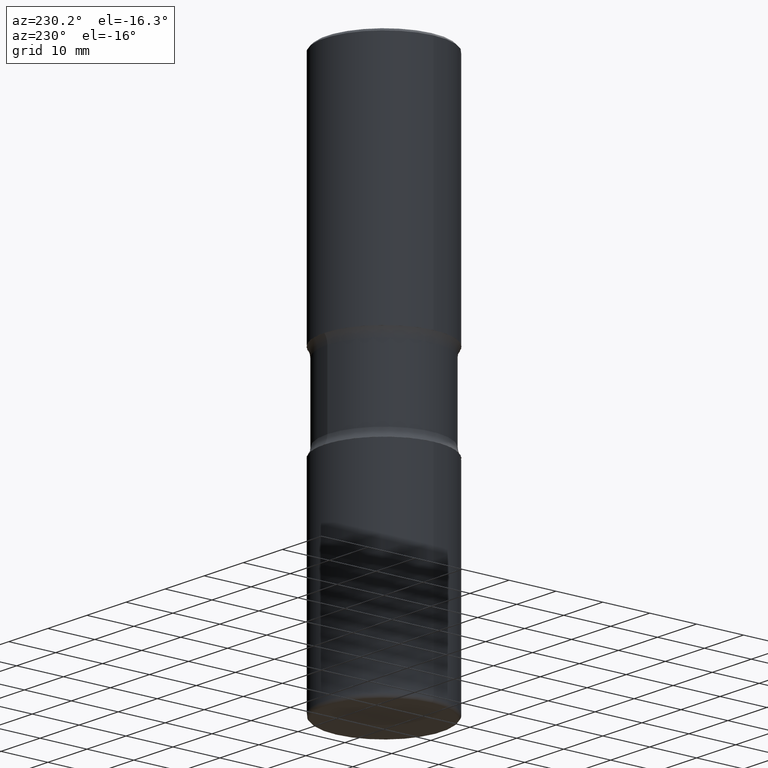
[diagram: clean part render]
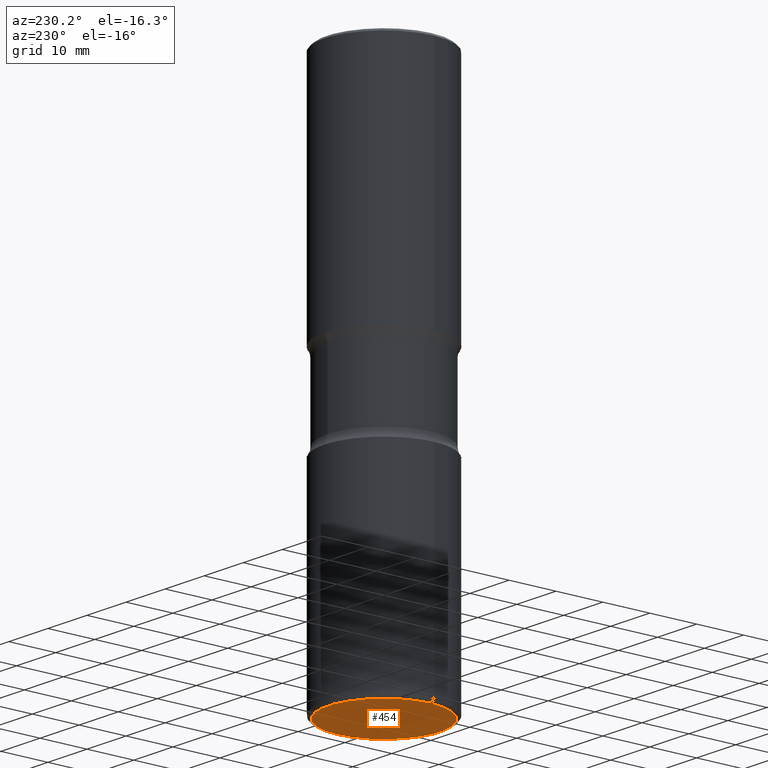
[diagram: same view with one face highlighted and labeled with its STEP entity id]
A machine part, auxiliary view. The second image highlights one B-rep face of the part: STEP entity #454.
In plain terms, the highlighted planar face has unit normal (0, -0, -1).
Its self-contained STEP definition (entity closure, byte-faithful):
#14 = DIRECTION ( 'NONE',  ( 2.438088387897960049E-29, -3.491481338843145188E-15, -1.000000000000000000 ) ) ;
#56 = CARTESIAN_POINT ( 'NONE',  ( 1.100460962783311469E-28, -1.571166602479415690E-14, -4.500000000000000000 ) ) ;
#77 = AXIS2_PLACEMENT_3D ( 'NONE', #146, #14, #400 ) ;
#89 = CARTESIAN_POINT ( 'NONE',  ( 0.4700000000000004730, -1.899365848330670351E-14, -4.500000000000000000 ) ) ;
#107 = DIRECTION ( 'NONE',  ( -2.445468806185136597E-29, 3.491481338843145583E-15, 1.000000000000000000 ) ) ;
#111 = PLANE ( 'NONE',  #77 ) ;
#113 = EDGE_CURVE ( 'NONE', #494, #114, #262, .T. ) ;
#114 = VERTEX_POINT ( 'NONE', #89 ) ;
#139 = DIRECTION ( 'NONE',  ( 1.000000000000000000, -6.982962677686268288E-15, 0.000000000000000000 ) ) ;
#146 = CARTESIAN_POINT ( 'NONE',  ( 1.831046210561297832E-28, -5.249269453314009692E-15, -4.500000000000000888 ) ) ;
#198 = CIRCLE ( 'NONE', #267, 0.4700000000000004730 ) ;
#262 = CIRCLE ( 'NONE', #334, 0.4700000000000004730 ) ;
#267 = AXIS2_PLACEMENT_3D ( 'NONE', #56, #107, #139 ) ;
#270 = ORIENTED_EDGE ( 'NONE', *, *, #350, .F. ) ;
#317 = CARTESIAN_POINT ( 'NONE',  ( -0.4700000000000004730, -1.221316153627502204E-14, -4.500000000000000000 ) ) ;
#334 = AXIS2_PLACEMENT_3D ( 'NONE', #515, #520, #390 ) ;
#350 = EDGE_CURVE ( 'NONE', #114, #494, #198, .T. ) ;
#366 = FACE_OUTER_BOUND ( 'NONE', #498, .T. ) ;
#390 = DIRECTION ( 'NONE',  ( 1.000000000000000000, -6.982962677686268288E-15, 0.000000000000000000 ) ) ;
#400 = DIRECTION ( 'NONE',  ( -1.000000000000000000, 6.982962677686265922E-15, -4.876176775795935793E-29 ) ) ;
#408 = ORIENTED_EDGE ( 'NONE', *, *, #113, .F. ) ;
#454 = ADVANCED_FACE ( 'NONE', ( #366 ), #111, .T. ) ;
#494 = VERTEX_POINT ( 'NONE', #317 ) ;
#498 = EDGE_LOOP ( 'NONE', ( #270, #408 ) ) ;
#515 = CARTESIAN_POINT ( 'NONE',  ( 1.100460962783311469E-28, -1.571166602479415690E-14, -4.500000000000000000 ) ) ;
#520 = DIRECTION ( 'NONE',  ( -2.445468806185136597E-29, 3.491481338843145583E-15, 1.000000000000000000 ) ) ;